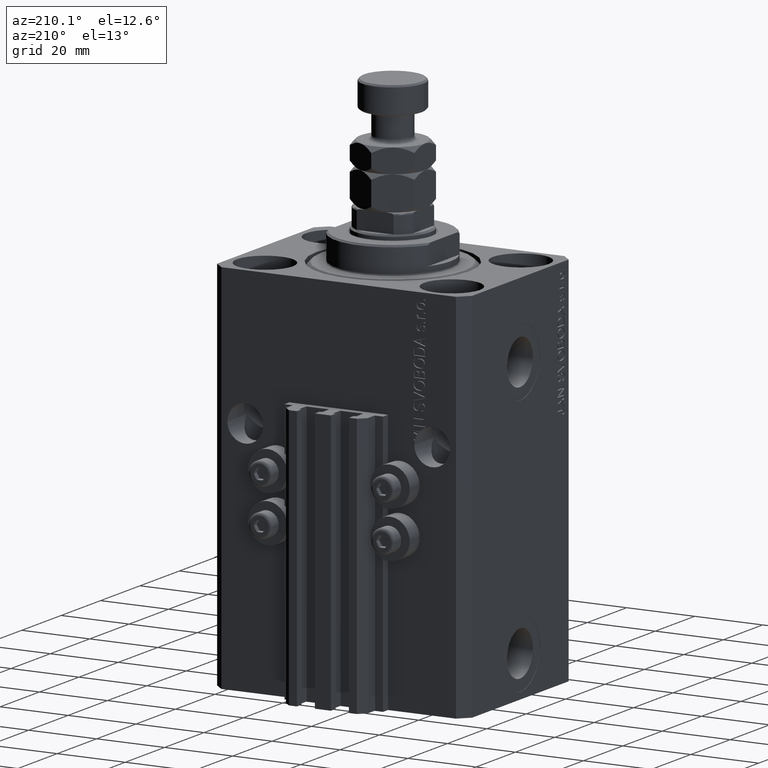
[diagram: clean part render]
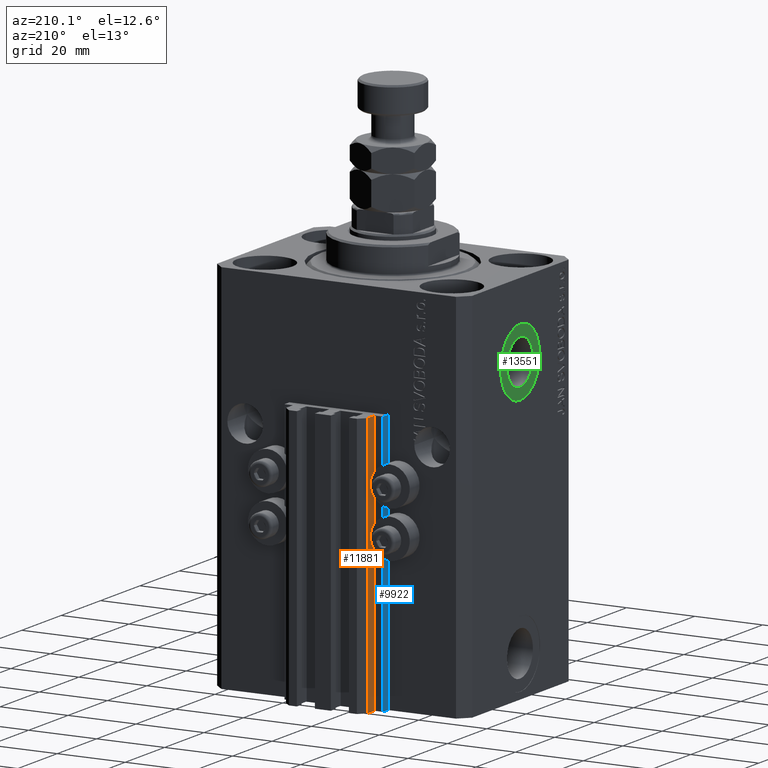
[diagram: same view with three faces highlighted in distinct colors, each labeled with its STEP entity id]
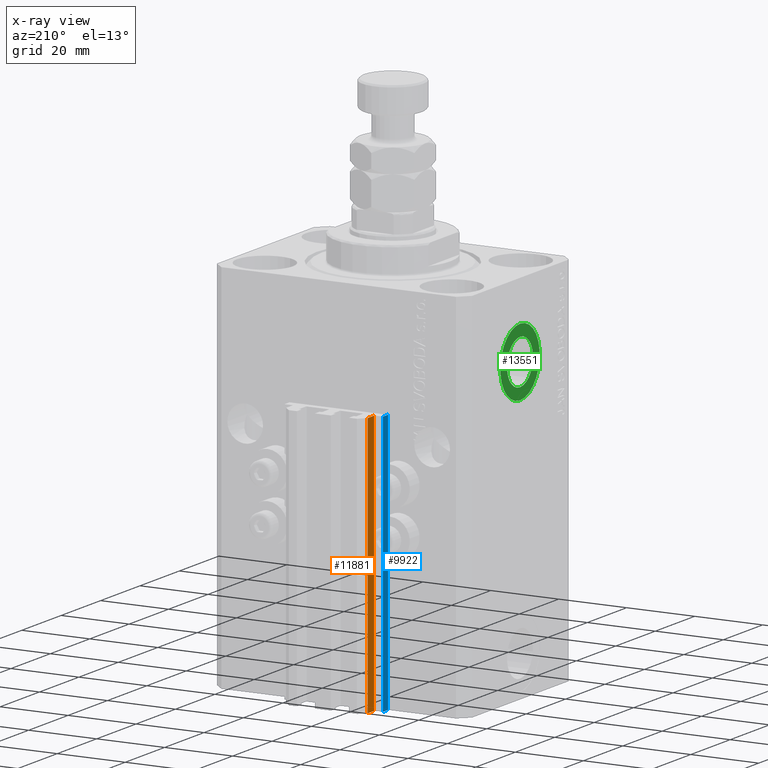
[diagram: x-ray of the same camera — body ghosted, the three highlighted faces saturated]
A machine part, auxiliary view with three faces highlighted in distinct colors.
The next image is the same camera in x-ray (body ghosted, the three faces saturated) — at least one of them is partly hidden behind the body in this view.
Their STEP definitions:

[orange] entity #11881 — the highlighted planar face has unit normal (-1, 0, 0).
#205 = LINE ( 'NONE', #41851, #42353 ) ;
#2818 = CARTESIAN_POINT ( 'NONE',  ( -12.00000000000000000, 30.19999999999999218, -110.0000000000000000 ) ) ;
#4054 = AXIS2_PLACEMENT_3D ( 'NONE', #23287, #45809, #23768 ) ;
#4126 = DIRECTION ( 'NONE',  ( 0.000000000000000000, 0.000000000000000000, 1.000000000000000000 ) ) ;
#5121 = FACE_OUTER_BOUND ( 'NONE', #38151, .T. ) ;
#7754 = EDGE_CURVE ( 'NONE', #10421, #33258, #205, .T. ) ;
#9043 = PLANE ( 'NONE',  #4054 ) ;
#9080 = ORIENTED_EDGE ( 'NONE', *, *, #48131, .F. ) ;
#10421 = VERTEX_POINT ( 'NONE', #2818 ) ;
#11881 = ADVANCED_FACE ( 'NONE', ( #5121 ), #9043, .T. ) ;
#14295 = DIRECTION ( 'NONE',  ( 0.000000000000000000, 0.000000000000000000, 1.000000000000000000 ) ) ;
#15097 = LINE ( 'NONE', #18782, #46683 ) ;
#15542 = VECTOR ( 'NONE', #45453, 1000.000000000000000 ) ;
#15571 = CARTESIAN_POINT ( 'NONE',  ( -12.00000000000000000, 33.49999999999998579, -33.00000000000000000 ) ) ;
#18782 = CARTESIAN_POINT ( 'NONE',  ( -12.00000000000000000, 33.49999999999998579, -110.0000000000000000 ) ) ;
#23287 = CARTESIAN_POINT ( 'NONE',  ( -12.00000000000000000, 33.49999999999998579, -110.0000000000000000 ) ) ;
#23768 = DIRECTION ( 'NONE',  ( 0.000000000000000000, 0.000000000000000000, 1.000000000000000000 ) ) ;
#24721 = CARTESIAN_POINT ( 'NONE',  ( -12.00000000000000000, 30.19999999999999218, -33.00000000000000000 ) ) ;
#25632 = EDGE_CURVE ( 'NONE', #36936, #10421, #15097, .T. ) ;
#25805 = ORIENTED_EDGE ( 'NONE', *, *, #7754, .T. ) ;
#26300 = CARTESIAN_POINT ( 'NONE',  ( -12.00000000000000000, 33.49999999999998579, -110.0000000000000000 ) ) ;
#26740 = CARTESIAN_POINT ( 'NONE',  ( -12.00000000000000000, 33.49999999999998579, -33.00000000000000000 ) ) ;
#26922 = ORIENTED_EDGE ( 'NONE', *, *, #25632, .T. ) ;
#28285 = CARTESIAN_POINT ( 'NONE',  ( -12.00000000000000000, 33.49999999999998579, -110.0000000000000000 ) ) ;
#29485 = LINE ( 'NONE', #26300, #41286 ) ;
#33258 = VERTEX_POINT ( 'NONE', #24721 ) ;
#34198 = LINE ( 'NONE', #15571, #15542 ) ;
#36936 = VERTEX_POINT ( 'NONE', #28285 ) ;
#38151 = EDGE_LOOP ( 'NONE', ( #9080, #40841, #26922, #25805 ) ) ;
#40841 = ORIENTED_EDGE ( 'NONE', *, *, #41863, .F. ) ;
#41286 = VECTOR ( 'NONE', #14295, 1000.000000000000000 ) ;
#41781 = DIRECTION ( 'NONE',  ( 0.000000000000000000, -1.000000000000000000, 0.000000000000000000 ) ) ;
#41851 = CARTESIAN_POINT ( 'NONE',  ( -12.00000000000000000, 30.19999999999999218, -110.0000000000000000 ) ) ;
#41863 = EDGE_CURVE ( 'NONE', #36936, #45008, #29485, .T. ) ;
#42353 = VECTOR ( 'NONE', #4126, 1000.000000000000000 ) ;
#45008 = VERTEX_POINT ( 'NONE', #26740 ) ;
#45453 = DIRECTION ( 'NONE',  ( 0.000000000000000000, -1.000000000000000000, 0.000000000000000000 ) ) ;
#45809 = DIRECTION ( 'NONE',  ( -1.000000000000000000, 0.000000000000000000, 0.000000000000000000 ) ) ;
#46683 = VECTOR ( 'NONE', #41781, 1000.000000000000000 ) ;
#48131 = EDGE_CURVE ( 'NONE', #45008, #33258, #34198, .T. ) ;

[blue] entity #9922 — the highlighted planar face has unit normal (-1, 0, 0).
#47 = ORIENTED_EDGE ( 'NONE', *, *, #40157, .T. ) ;
#396 = CARTESIAN_POINT ( 'NONE',  ( -14.50000000000000000, 29.99999999999999289, -33.00000000000000000 ) ) ;
#1182 = VERTEX_POINT ( 'NONE', #396 ) ;
#5162 = DIRECTION ( 'NONE',  ( 0.000000000000000000, 0.000000000000000000, 1.000000000000000000 ) ) ;
#6229 = ORIENTED_EDGE ( 'NONE', *, *, #19848, .T. ) ;
#7285 = VERTEX_POINT ( 'NONE', #46605 ) ;
#8296 = DIRECTION ( 'NONE',  ( 0.000000000000000000, -1.000000000000000000, 0.000000000000000000 ) ) ;
#8415 = DIRECTION ( 'NONE',  ( 0.000000000000000000, -1.000000000000000000, 0.000000000000000000 ) ) ;
#9922 = ADVANCED_FACE ( 'NONE', ( #35079 ), #42416, .T. ) ;
#10617 = VECTOR ( 'NONE', #8415, 1000.000000000000000 ) ;
#11258 = LINE ( 'NONE', #29751, #13024 ) ;
#12527 = ORIENTED_EDGE ( 'NONE', *, *, #23897, .F. ) ;
#13024 = VECTOR ( 'NONE', #29661, 1000.000000000000000 ) ;
#13735 = CARTESIAN_POINT ( 'NONE',  ( -14.50000000000000000, 27.50000000000000355, -33.00000000000000000 ) ) ;
#16754 = LINE ( 'NONE', #31709, #27932 ) ;
#19714 = DIRECTION ( 'NONE',  ( 0.000000000000000000, 0.000000000000000000, 1.000000000000000000 ) ) ;
#19848 = EDGE_CURVE ( 'NONE', #22983, #7285, #46269, .T. ) ;
#20185 = CARTESIAN_POINT ( 'NONE',  ( -14.50000000000000000, 29.99999999999999289, -33.00000000000000000 ) ) ;
#22983 = VERTEX_POINT ( 'NONE', #45420 ) ;
#23897 = EDGE_CURVE ( 'NONE', #1182, #46322, #42234, .T. ) ;
#27932 = VECTOR ( 'NONE', #19714, 1000.000000000000000 ) ;
#29661 = DIRECTION ( 'NONE',  ( 0.000000000000000000, 0.000000000000000000, 1.000000000000000000 ) ) ;
#29751 = CARTESIAN_POINT ( 'NONE',  ( -14.50000000000000000, 29.99999999999999289, -110.0000000000000000 ) ) ;
#31541 = ORIENTED_EDGE ( 'NONE', *, *, #39424, .F. ) ;
#31709 = CARTESIAN_POINT ( 'NONE',  ( -14.50000000000000000, 27.50000000000000355, -110.0000000000000000 ) ) ;
#35079 = FACE_OUTER_BOUND ( 'NONE', #41620, .T. ) ;
#35297 = AXIS2_PLACEMENT_3D ( 'NONE', #46335, #38266, #5162 ) ;
#37983 = VECTOR ( 'NONE', #8296, 1000.000000000000000 ) ;
#38266 = DIRECTION ( 'NONE',  ( -1.000000000000000000, 0.000000000000000000, 0.000000000000000000 ) ) ;
#39424 = EDGE_CURVE ( 'NONE', #22983, #1182, #11258, .T. ) ;
#40157 = EDGE_CURVE ( 'NONE', #7285, #46322, #16754, .T. ) ;
#41620 = EDGE_LOOP ( 'NONE', ( #12527, #31541, #6229, #47 ) ) ;
#41869 = CARTESIAN_POINT ( 'NONE',  ( -14.50000000000000000, 29.99999999999999289, -110.0000000000000000 ) ) ;
#42234 = LINE ( 'NONE', #20185, #10617 ) ;
#42416 = PLANE ( 'NONE',  #35297 ) ;
#45420 = CARTESIAN_POINT ( 'NONE',  ( -14.50000000000000000, 29.99999999999999289, -110.0000000000000000 ) ) ;
#46269 = LINE ( 'NONE', #41869, #37983 ) ;
#46322 = VERTEX_POINT ( 'NONE', #13735 ) ;
#46335 = CARTESIAN_POINT ( 'NONE',  ( -14.50000000000000000, 29.99999999999999289, -110.0000000000000000 ) ) ;
#46605 = CARTESIAN_POINT ( 'NONE',  ( -14.50000000000000000, 27.50000000000000355, -110.0000000000000000 ) ) ;

[green] entity #13551 — the highlighted planar face has unit normal (-1, 0, 0).
#1419 = ORIENTED_EDGE ( 'NONE', *, *, #4244, .T. ) ;
#3434 = PLANE ( 'NONE',  #44024 ) ;
#4244 = EDGE_CURVE ( 'NONE', #39570, #19448, #44512, .T. ) ;
#4685 = EDGE_CURVE ( 'NONE', #28993, #35964, #24209, .T. ) ;
#10413 = DIRECTION ( 'NONE',  ( -1.000000000000000000, 0.000000000000000000, 0.000000000000000000 ) ) ;
#10432 = EDGE_CURVE ( 'NONE', #35964, #28993, #25934, .T. ) ;
#10539 = FACE_OUTER_BOUND ( 'NONE', #35855, .T. ) ;
#11265 = DIRECTION ( 'NONE',  ( 0.000000000000000000, 0.000000000000000000, 1.000000000000000000 ) ) ;
#13551 = ADVANCED_FACE ( 'NONE', ( #26229, #10539 ), #3434, .T. ) ;
#13969 = ORIENTED_EDGE ( 'NONE', *, *, #33748, .T. ) ;
#14711 = DIRECTION ( 'NONE',  ( -1.000000000000000000, 0.000000000000000000, 0.000000000000000000 ) ) ;
#16033 = DIRECTION ( 'NONE',  ( -1.000000000000000000, 0.000000000000000000, 0.000000000000000000 ) ) ;
#17535 = CARTESIAN_POINT ( 'NONE',  ( -37.39999999999999147, 8.058175938389579572E-16, -28.57999999999999829 ) ) ;
#19448 = VERTEX_POINT ( 'NONE', #26277 ) ;
#22562 = CARTESIAN_POINT ( 'NONE',  ( -37.39999999999999147, 0.000000000000000000, -22.00000000000000000 ) ) ;
#22644 = AXIS2_PLACEMENT_3D ( 'NONE', #31661, #46840, #42916 ) ;
#23781 = CARTESIAN_POINT ( 'NONE',  ( -37.39999999999999147, 0.000000000000000000, -15.41999999999999993 ) ) ;
#24209 = CIRCLE ( 'NONE', #36734, 6.579999999999999183 ) ;
#25379 = DIRECTION ( 'NONE',  ( 0.000000000000000000, 0.000000000000000000, 1.000000000000000000 ) ) ;
#25934 = CIRCLE ( 'NONE', #47814, 6.579999999999999183 ) ;
#26229 = FACE_BOUND ( 'NONE', #44226, .T. ) ;
#26277 = CARTESIAN_POINT ( 'NONE',  ( -37.39999999999999147, 1.224646799147353059E-15, -32.00000000000000000 ) ) ;
#27161 = ORIENTED_EDGE ( 'NONE', *, *, #10432, .F. ) ;
#28993 = VERTEX_POINT ( 'NONE', #23781 ) ;
#29045 = CARTESIAN_POINT ( 'NONE',  ( -37.39999999999999147, 0.000000000000000000, -22.00000000000000000 ) ) ;
#31661 = CARTESIAN_POINT ( 'NONE',  ( -37.39999999999999147, 0.000000000000000000, -22.00000000000000000 ) ) ;
#32172 = CARTESIAN_POINT ( 'NONE',  ( -37.39999999999999147, 0.000000000000000000, -22.00000000000000000 ) ) ;
#33748 = EDGE_CURVE ( 'NONE', #19448, #39570, #35182, .T. ) ;
#35016 = CARTESIAN_POINT ( 'NONE',  ( -37.39999999999999147, 0.000000000000000000, -11.99999999999999822 ) ) ;
#35182 = CIRCLE ( 'NONE', #41443, 10.00000000000000000 ) ;
#35855 = EDGE_LOOP ( 'NONE', ( #1419, #13969 ) ) ;
#35964 = VERTEX_POINT ( 'NONE', #17535 ) ;
#36734 = AXIS2_PLACEMENT_3D ( 'NONE', #32172, #47105, #43416 ) ;
#36883 = ORIENTED_EDGE ( 'NONE', *, *, #4685, .F. ) ;
#39570 = VERTEX_POINT ( 'NONE', #35016 ) ;
#41443 = AXIS2_PLACEMENT_3D ( 'NONE', #42009, #16033, #45207 ) ;
#42009 = CARTESIAN_POINT ( 'NONE',  ( -37.39999999999999147, 0.000000000000000000, -22.00000000000000000 ) ) ;
#42916 = DIRECTION ( 'NONE',  ( 0.000000000000000000, 0.000000000000000000, 1.000000000000000000 ) ) ;
#43416 = DIRECTION ( 'NONE',  ( 0.000000000000000000, 0.000000000000000000, 1.000000000000000000 ) ) ;
#44024 = AXIS2_PLACEMENT_3D ( 'NONE', #22562, #14711, #11265 ) ;
#44226 = EDGE_LOOP ( 'NONE', ( #36883, #27161 ) ) ;
#44512 = CIRCLE ( 'NONE', #22644, 10.00000000000000000 ) ;
#45207 = DIRECTION ( 'NONE',  ( 0.000000000000000000, 0.000000000000000000, 1.000000000000000000 ) ) ;
#46840 = DIRECTION ( 'NONE',  ( -1.000000000000000000, 0.000000000000000000, 0.000000000000000000 ) ) ;
#47105 = DIRECTION ( 'NONE',  ( -1.000000000000000000, 0.000000000000000000, 0.000000000000000000 ) ) ;
#47814 = AXIS2_PLACEMENT_3D ( 'NONE', #29045, #10413, #25379 ) ;